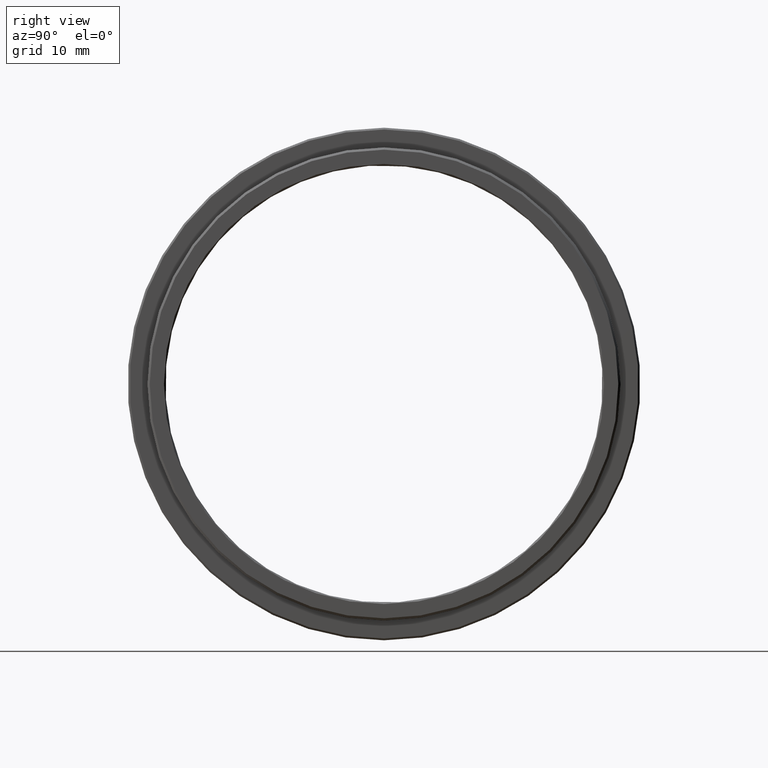
[diagram: clean part render]
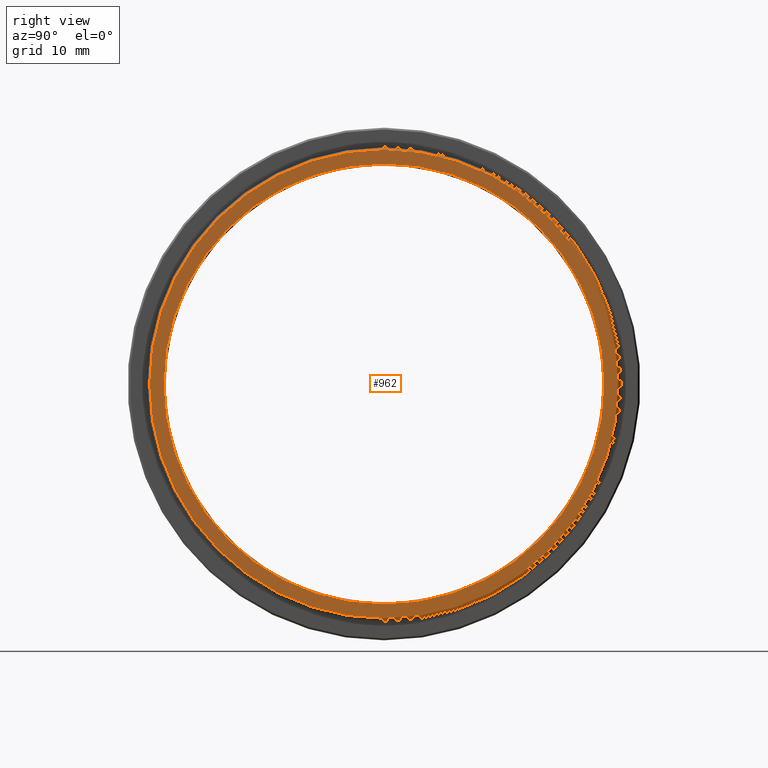
[diagram: same view with one face highlighted and labeled with its STEP entity id]
A machine part, right view. The second image highlights one B-rep face of the part: STEP entity #962.
In plain terms, the highlighted planar face has unit normal (1, 0, 0).
Its self-contained STEP definition (entity closure, byte-faithful):
#61 = DIRECTION ( 'NONE',  ( 1.000000000000000000, 0.000000000000000000, 0.000000000000000000 ) ) ;
#129 = DIRECTION ( 'NONE',  ( 0.000000000000000000, 0.000000000000000000, -1.000000000000000000 ) ) ;
#147 = CIRCLE ( 'NONE', #645, 25.54999999999999716 ) ;
#152 = DIRECTION ( 'NONE',  ( 1.000000000000000000, 0.000000000000000000, 0.000000000000000000 ) ) ;
#251 = CIRCLE ( 'NONE', #1582, 25.54999999999999716 ) ;
#252 = EDGE_CURVE ( 'NONE', #1206, #803, #147, .T. ) ;
#254 = FACE_BOUND ( 'NONE', #1151, .T. ) ;
#359 = CARTESIAN_POINT ( 'NONE',  ( 6.525999999999982926, -20.10857142857141966, 0.000000000000000000 ) ) ;
#420 = ORIENTED_EDGE ( 'NONE', *, *, #662, .F. ) ;
#428 = FACE_OUTER_BOUND ( 'NONE', #1460, .T. ) ;
#494 = DIRECTION ( 'NONE',  ( 0.000000000000000000, 0.000000000000000000, -1.000000000000000000 ) ) ;
#535 = CARTESIAN_POINT ( 'NONE',  ( 6.525999999999982926, -20.10857142857141611, 24.00000000000000355 ) ) ;
#536 = VERTEX_POINT ( 'NONE', #884 ) ;
#560 = CIRCLE ( 'NONE', #1256, 24.00000000000000355 ) ;
#581 = CARTESIAN_POINT ( 'NONE',  ( 6.525999999999982926, -20.10857142857141966, 0.000000000000000000 ) ) ;
#641 = CIRCLE ( 'NONE', #714, 24.00000000000000355 ) ;
#645 = AXIS2_PLACEMENT_3D ( 'NONE', #581, #1204, #957 ) ;
#662 = EDGE_CURVE ( 'NONE', #536, #692, #641, .T. ) ;
#692 = VERTEX_POINT ( 'NONE', #535 ) ;
#714 = AXIS2_PLACEMENT_3D ( 'NONE', #893, #152, #129 ) ;
#803 = VERTEX_POINT ( 'NONE', #808 ) ;
#808 = CARTESIAN_POINT ( 'NONE',  ( 6.525999999999982926, -20.10857142857141611, -25.54999999999999716 ) ) ;
#824 = ORIENTED_EDGE ( 'NONE', *, *, #252, .T. ) ;
#835 = PLANE ( 'NONE',  #995 ) ;
#884 = CARTESIAN_POINT ( 'NONE',  ( 6.525999999999982926, -20.10857142857141966, -24.00000000000000355 ) ) ;
#893 = CARTESIAN_POINT ( 'NONE',  ( 6.525999999999982926, -20.10857142857141966, 0.000000000000000000 ) ) ;
#949 = DIRECTION ( 'NONE',  ( 0.000000000000000000, 0.000000000000000000, -1.000000000000000000 ) ) ;
#957 = DIRECTION ( 'NONE',  ( 0.000000000000000000, 0.000000000000000000, -1.000000000000000000 ) ) ;
#962 = ADVANCED_FACE ( 'NONE', ( #428, #254 ), #835, .T. ) ;
#995 = AXIS2_PLACEMENT_3D ( 'NONE', #1103, #1593, #949 ) ;
#1010 = ORIENTED_EDGE ( 'NONE', *, *, #1098, .F. ) ;
#1098 = EDGE_CURVE ( 'NONE', #692, #536, #560, .T. ) ;
#1103 = CARTESIAN_POINT ( 'NONE',  ( 6.525999999999982926, -20.10857142857141966, 0.000000000000000000 ) ) ;
#1151 = EDGE_LOOP ( 'NONE', ( #420, #1010 ) ) ;
#1195 = CARTESIAN_POINT ( 'NONE',  ( 6.525999999999982926, -20.10857142857141966, 0.000000000000000000 ) ) ;
#1204 = DIRECTION ( 'NONE',  ( 1.000000000000000000, 0.000000000000000000, 0.000000000000000000 ) ) ;
#1206 = VERTEX_POINT ( 'NONE', #1326 ) ;
#1231 = ORIENTED_EDGE ( 'NONE', *, *, #1398, .T. ) ;
#1256 = AXIS2_PLACEMENT_3D ( 'NONE', #359, #1484, #494 ) ;
#1325 = DIRECTION ( 'NONE',  ( 0.000000000000000000, 0.000000000000000000, -1.000000000000000000 ) ) ;
#1326 = CARTESIAN_POINT ( 'NONE',  ( 6.525999999999982926, -20.10857142857141966, 25.54999999999999716 ) ) ;
#1398 = EDGE_CURVE ( 'NONE', #803, #1206, #251, .T. ) ;
#1460 = EDGE_LOOP ( 'NONE', ( #824, #1231 ) ) ;
#1484 = DIRECTION ( 'NONE',  ( 1.000000000000000000, 0.000000000000000000, 0.000000000000000000 ) ) ;
#1582 = AXIS2_PLACEMENT_3D ( 'NONE', #1195, #61, #1325 ) ;
#1593 = DIRECTION ( 'NONE',  ( 1.000000000000000000, 0.000000000000000000, 0.000000000000000000 ) ) ;